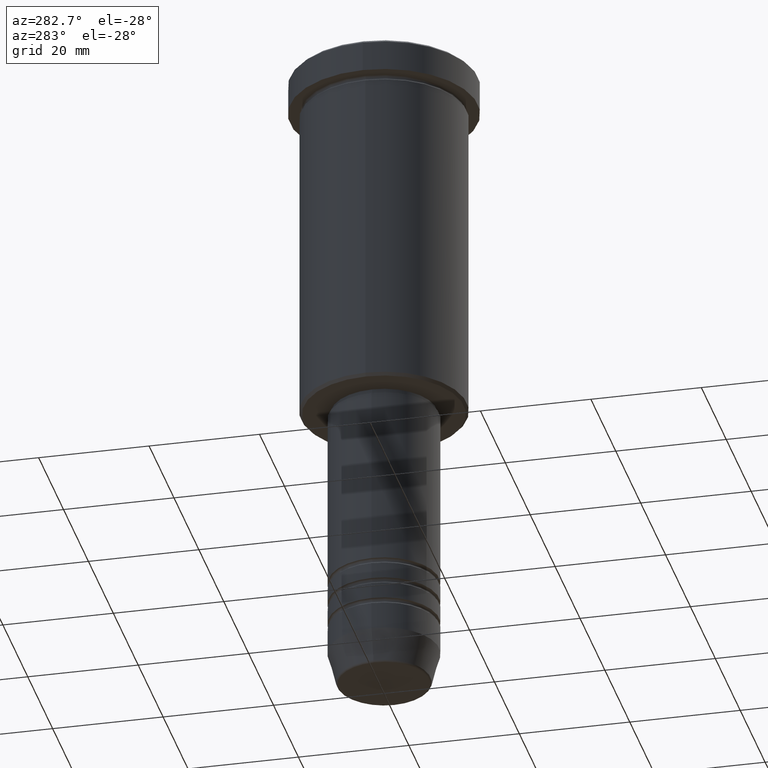
[diagram: clean part render]
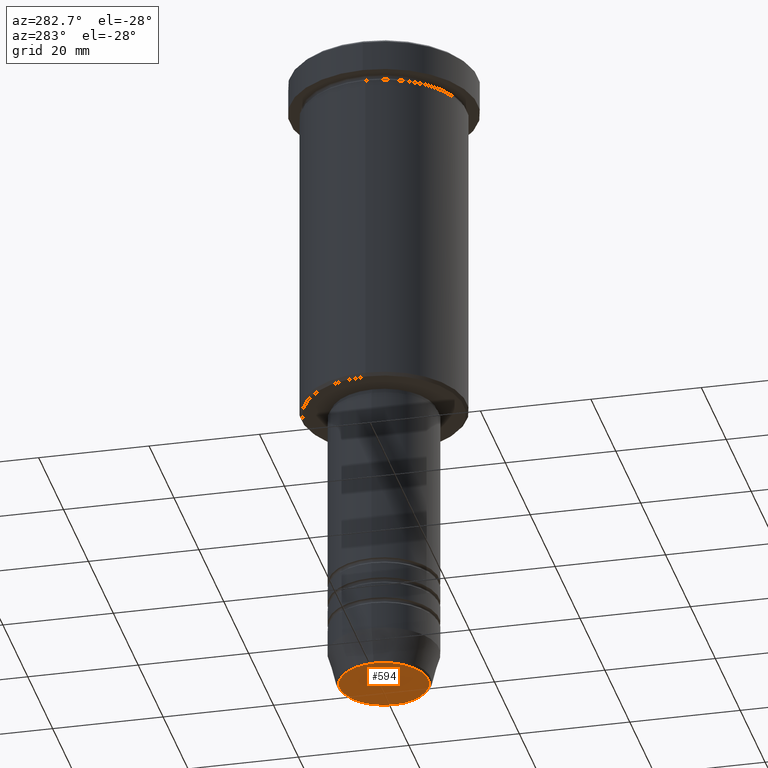
[diagram: same view with one face highlighted and labeled with its STEP entity id]
A machine part, auxiliary view. The second image highlights one B-rep face of the part: STEP entity #594.
In plain terms, the highlighted planar face has unit normal (0, -0, 1).
Its self-contained STEP definition (entity closure, byte-faithful):
#47 = CIRCLE ( 'NONE', #862, 8.008641351423779753 ) ;
#119 = PLANE ( 'NONE',  #1178 ) ;
#202 = CARTESIAN_POINT ( 'NONE',  ( 8.008641351423779753, 0.000000000000000000, -120.0000000000000000 ) ) ;
#221 = DIRECTION ( 'NONE',  ( 1.000000000000000000, 0.000000000000000000, 0.000000000000000000 ) ) ;
#236 = VERTEX_POINT ( 'NONE', #909 ) ;
#263 = AXIS2_PLACEMENT_3D ( 'NONE', #857, #296, #1118 ) ;
#296 = DIRECTION ( 'NONE',  ( 0.000000000000000000, 0.000000000000000000, -1.000000000000000000 ) ) ;
#394 = DIRECTION ( 'NONE',  ( 1.000000000000000000, 0.000000000000000000, 0.000000000000000000 ) ) ;
#403 = DIRECTION ( 'NONE',  ( 0.000000000000000000, -0.000000000000000000, 1.000000000000000000 ) ) ;
#410 = CIRCLE ( 'NONE', #263, 8.008641351423779753 ) ;
#436 = ORIENTED_EDGE ( 'NONE', *, *, #589, .T. ) ;
#510 = EDGE_LOOP ( 'NONE', ( #436, #875 ) ) ;
#523 = EDGE_CURVE ( 'NONE', #236, #927, #410, .T. ) ;
#589 = EDGE_CURVE ( 'NONE', #927, #236, #47, .T. ) ;
#594 = ADVANCED_FACE ( 'NONE', ( #838 ), #119, .F. ) ;
#757 = CARTESIAN_POINT ( 'NONE',  ( 0.000000000000000000, 0.000000000000000000, -120.0000000000000000 ) ) ;
#838 = FACE_OUTER_BOUND ( 'NONE', #510, .T. ) ;
#857 = CARTESIAN_POINT ( 'NONE',  ( 0.000000000000000000, 0.000000000000000000, -120.0000000000000000 ) ) ;
#862 = AXIS2_PLACEMENT_3D ( 'NONE', #1025, #937, #394 ) ;
#875 = ORIENTED_EDGE ( 'NONE', *, *, #523, .T. ) ;
#909 = CARTESIAN_POINT ( 'NONE',  ( -8.008641351423779753, 1.010348648938493172E-15, -120.0000000000000000 ) ) ;
#927 = VERTEX_POINT ( 'NONE', #202 ) ;
#937 = DIRECTION ( 'NONE',  ( 0.000000000000000000, 0.000000000000000000, -1.000000000000000000 ) ) ;
#1025 = CARTESIAN_POINT ( 'NONE',  ( 0.000000000000000000, 0.000000000000000000, -120.0000000000000000 ) ) ;
#1118 = DIRECTION ( 'NONE',  ( 1.000000000000000000, 0.000000000000000000, 0.000000000000000000 ) ) ;
#1178 = AXIS2_PLACEMENT_3D ( 'NONE', #757, #403, #221 ) ;